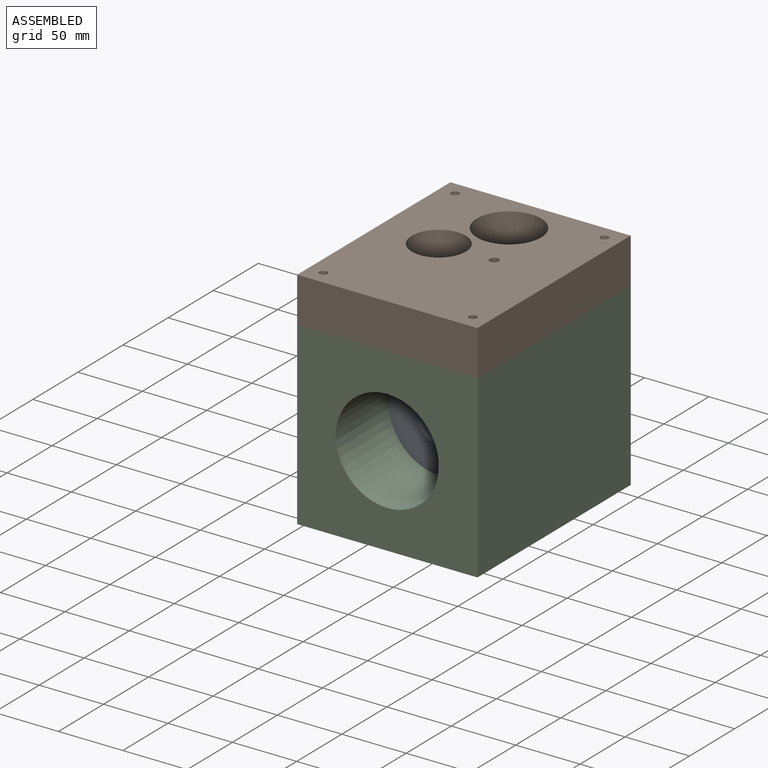
[diagram: assembled view]
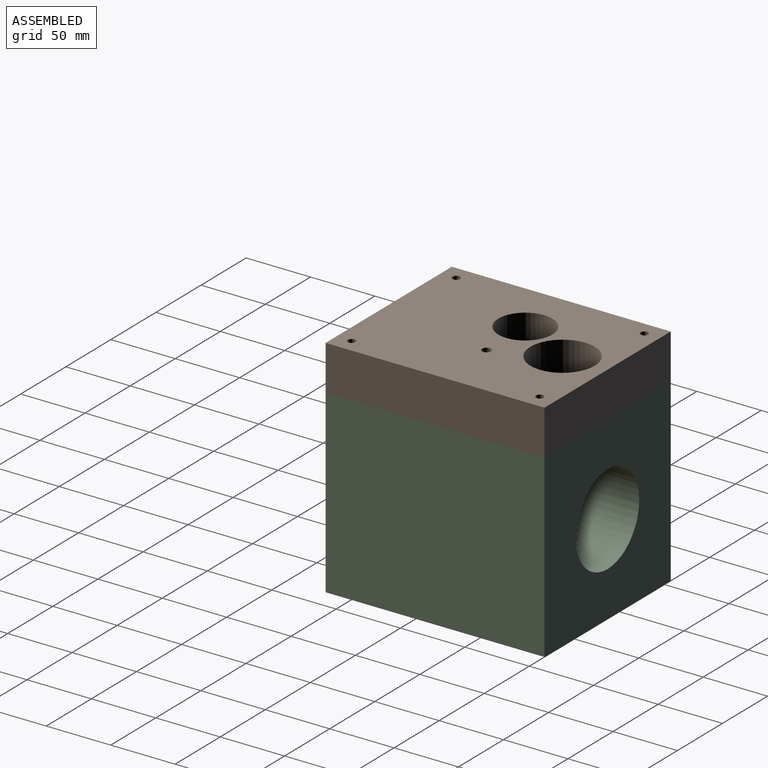
[diagram: assembled view, second angle]
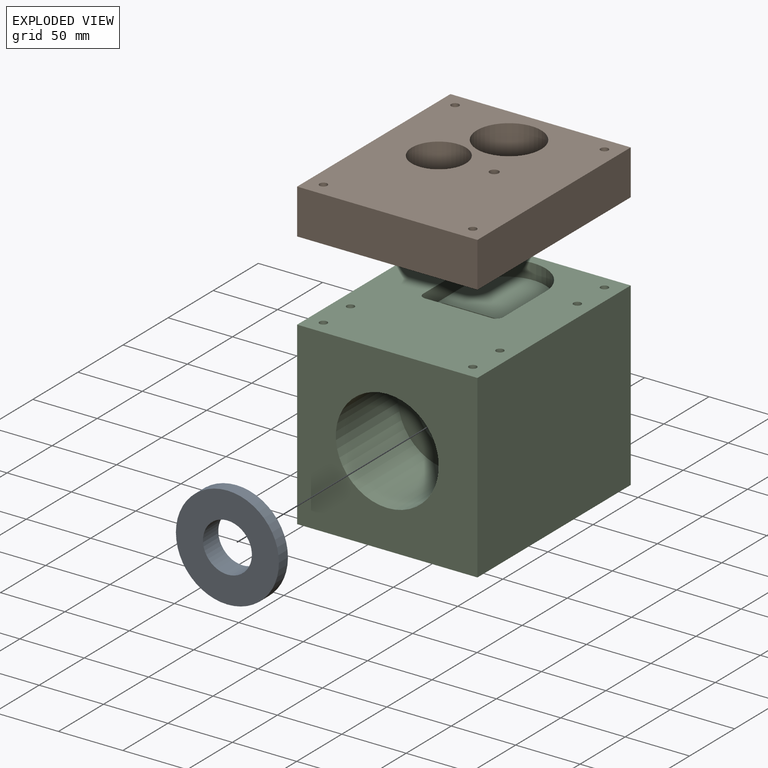
[diagram: exploded view]
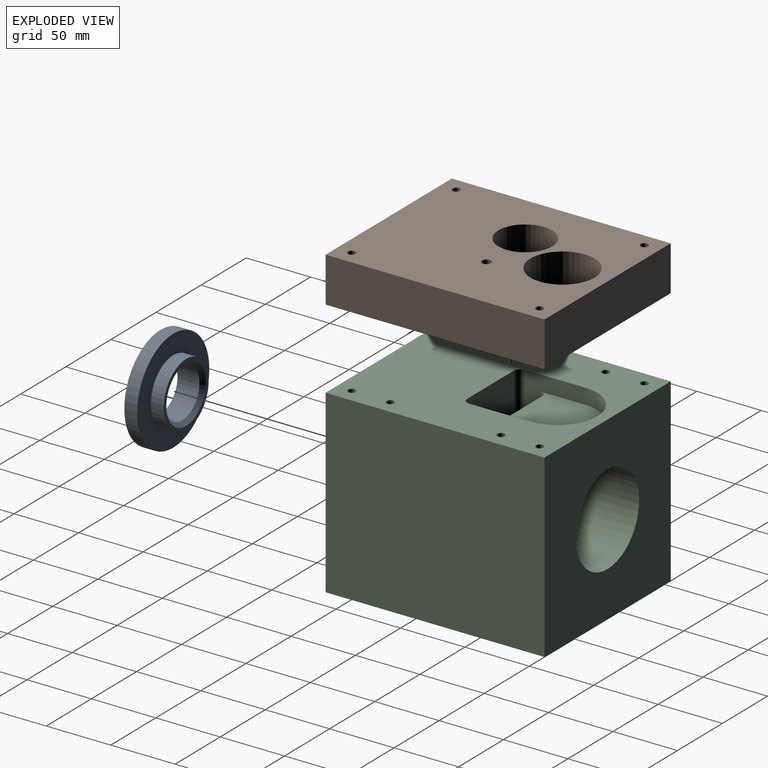
[diagram: exploded view, second angle]
ASSEMBLY  parts=3 mates=4
PART A: 7 faces, bbox 80x20x80 mm
  f0: cylinder r=25mm len=50mm, axis (0,-1,0), area 1570.8mm2, adj f1,f6
  f1: plane 80x80mm, normal (0,1,0), area 3063.1mm2, adj f0,f2
  f2: cylinder r=40mm len=80mm, axis (0,-1,0), area 2513.3mm2, adj f1,f3
  f3: plane 80x80mm, normal (0,-1,0), area 3892.4mm2, adj f2,f4
  f4: cylinder r=19mm len=38mm, axis (0,-1,0), area 2029.5mm2, adj f3,f5
  f5: cone r=19mm half-angle=45deg, axis (0,1,0), area 546.5mm2, adj f4,f6
  f6: plane 50x50mm, normal (0,1,0), area 443mm2, adj f0,f5
PART B: 15 faces, bbox 140x170x35 mm
  f0: plane 170x140mm, normal (0,0,1), area 20299.5mm2, adj f2,f3,f4,f5,f6,f7,f8,f9
  f1: plane 170x140mm, normal (0,0,-1), area 21483.9mm2, adj f2,f3,f4,f5,f6,f7,f8,f9
  f2: plane 170x35mm, normal (-1,0,0), area 5950mm2, adj f0,f1,f3,f5
  f3: plane 140x35mm, normal (0,-1,0), area 4900mm2, adj f0,f1,f2,f4
  f4: plane 170x35mm, normal (1,0,0), area 5950mm2, adj f0,f1,f3,f5
  f5: plane 140x35mm, normal (0,1,0), area 4900mm2, adj f0,f1,f2,f4
  f6: cylinder r=3mm len=35mm, axis (0,0,1), area 659.7mm2, adj f0,f1
  f7: cylinder r=3mm len=35mm, axis (0,0,1), area 659.7mm2, adj f0,f1
  f8: cylinder r=3mm len=35mm, axis (0,0,1), area 659.7mm2, adj f0,f1
  f9: cylinder r=3mm len=35mm, axis (0,0,1), area 659.7mm2, adj f0,f1
  f10: cylinder r=21mm len=42mm, axis (0,0,1), area 2638.9mm2, adj f0,f11
  f11: plane 42x42mm, normal (0,0,1), area 1184.4mm2, adj f10,f12
  f12: cylinder r=8mm len=16mm, axis (0,0,1), area 754mm2, adj f1,f11
  f13: cylinder r=3.5mm len=35mm, axis (0,0,1), area 769.7mm2, adj f0,f1
  f14: cylinder r=25mm len=50mm, axis (0,0,1), area 5497.8mm2, adj f0,f1
PART C: 38 faces, bbox 140x170x140 mm
  f0: plane 170x140mm, normal (0,0,1), area 18854.3mm2, adj f5,f7,f8,f9,f13,f16,f17,f18
  f1: cylinder r=5mm len=58mm, axis (0,0,1), area 384.2mm2, adj f3,f4,f12,f18,f37
  f2: cylinder r=5mm len=58mm, axis (0,0,1), area 384.2mm2, adj f3,f4,f12,f19,f37
  f3: plane 52x34.57mm, normal (0,-1,0), area 1381.1mm2, adj f1,f2,f11,f37
  f4: plane 70x58.43mm, normal (0,1,0), area 589.5mm2, adj f1,f2,f11,f12
  f5: plane 170x140mm, normal (-1,0,0), area 23800mm2, adj f0,f6,f8,f9
  f6: plane 170x140mm, normal (0,0,-1), area 23800mm2, adj f5,f7,f8,f9
  f7: plane 170x140mm, normal (1,0,0), area 23800mm2, adj f0,f6,f8,f9
  f8: plane 140x140mm, normal (0,-1,0), area 14573.5mm2, adj f0,f5,f6,f7,f10
  f9: plane 140x140mm, normal (0,1,0), area 15751.5mm2, adj f0,f5,f6,f7,f11
  f10: cylinder r=40mm len=80mm, axis (0,-1,0), area 17341.6mm2, adj f8,f15
  f11: cylinder r=35mm len=70mm, axis (0,-1,0), area 15173.9mm2, adj f3,f4,f9
  f12: cylinder r=31mm len=62mm, axis (0,-1,0), area 2280.7mm2, adj f1,f2,f4,f13,f16,f17,f18,f19
  f13: plane 101x62mm, normal (0,1,0), area 3300.5mm2, adj f0,f12,f14,f16,f17
  f14: cylinder r=25mm len=50mm, axis (0,-1,0), area 1570.8mm2, adj f13,f15
  f15: plane 80x80mm, normal (0,-1,0), area 3063.1mm2, adj f10,f14
  f16: cylinder r=5mm len=70mm, axis (0,0,1), area 478.4mm2, adj f0,f12,f13,f18
  f17: cylinder r=5mm len=70mm, axis (0,0,1), area 478.4mm2, adj f0,f12,f13,f19
  f18: plane 70x47mm, normal (1,0,0), area 1260mm2, adj f0,f1,f12,f16,f36,f37
  f19: plane 70x47mm, normal (-1,0,0), area 1260mm2, adj f0,f2,f12,f17,f36,f37
  f20: cylinder r=3mm len=35mm, axis (0,0,1), area 659.7mm2, adj f0,f21
  f21: plane 6x6mm, normal (0,0,1), area 28.3mm2, adj f20
  f22: cylinder r=2.97mm len=35mm, axis (0,0,1), area 653.4mm2, adj f0,f23
  f23: plane 5.94x5.94mm, normal (0,0,1), area 27.7mm2, adj f22
  f24: cylinder r=2.97mm len=35mm, axis (0,0,1), area 653.4mm2, adj f0,f25
  f25: plane 5.94x5.94mm, normal (0,0,1), area 27.7mm2, adj f24
  f26: cylinder r=2.97mm len=35mm, axis (0,0,1), area 653.4mm2, adj f0,f27
  f27: plane 5.94x5.94mm, normal (0,0,1), area 27.7mm2, adj f26
  f28: cylinder r=2.97mm len=35mm, axis (0,0,1), area 653.4mm2, adj f0,f29
  f29: plane 5.94x5.94mm, normal (0,0,1), area 27.7mm2, adj f28
  f30: cylinder r=2.97mm len=35mm, axis (0,0,1), area 653.4mm2, adj f0,f31
  f31: plane 5.94x5.94mm, normal (0,0,1), area 27.7mm2, adj f30
  f32: cylinder r=2.97mm len=35mm, axis (0,0,1), area 653.4mm2, adj f0,f33
  f33: plane 5.94x5.94mm, normal (0,0,1), area 27.7mm2, adj f32
  f34: cylinder r=3mm len=35mm, axis (0,0,1), area 659.7mm2, adj f0,f35
  f35: plane 6x6mm, normal (0,0,1), area 28.3mm2, adj f34
  f36: cylinder r=31mm len=62mm, axis (0,0,1), area 1168.7mm2, adj f0,f18,f19,f37
  f37: plane 66x62mm, normal (0,0,1), area 3380.3mm2, adj f1,f2,f3,f18,f19,f36
PLACE A t=(-29.39,14.27,0)mm
PLACE B t=(-29.39,20.27,70)mm
PLACE C t=(-29.39,25.27,0)mm fixed
MATE parallel A.f0 <-> C.f10  axis (0,1,0) through (-29.39,14.27,0)mm
MATE cylindrical B.f9 <-> C.f34  axis (0,0,1) through (28.61,-52.73,105)mm
MATE planar B.f1 <-> C.f0  axis (0,0,-1) through (-29.21,15.64,70)mm
MATE cylindrical A.f0 <-> C.f10  axis (0,1,0) through (-29.39,14.27,0)mm
